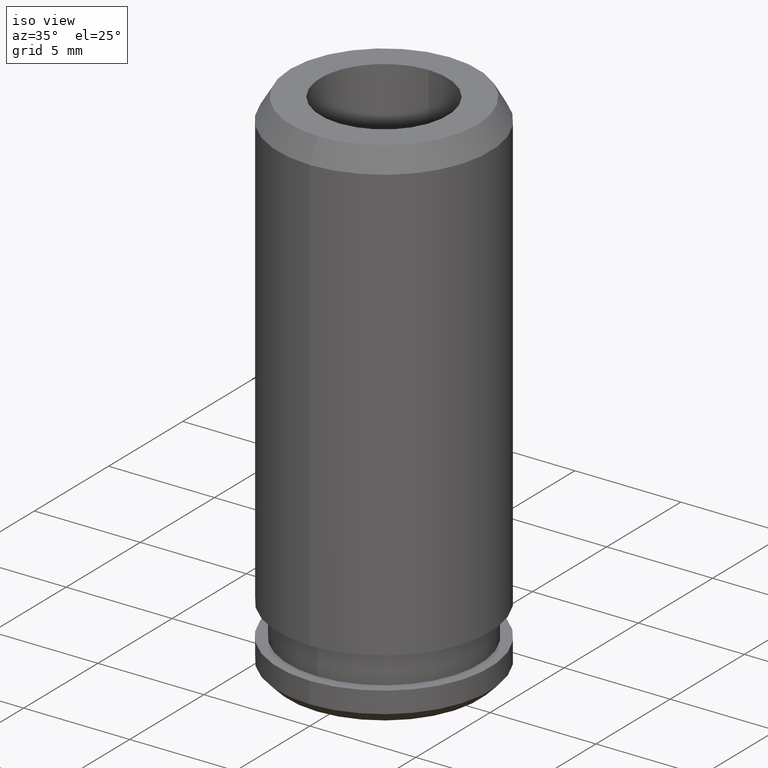
[diagram: clean part render]
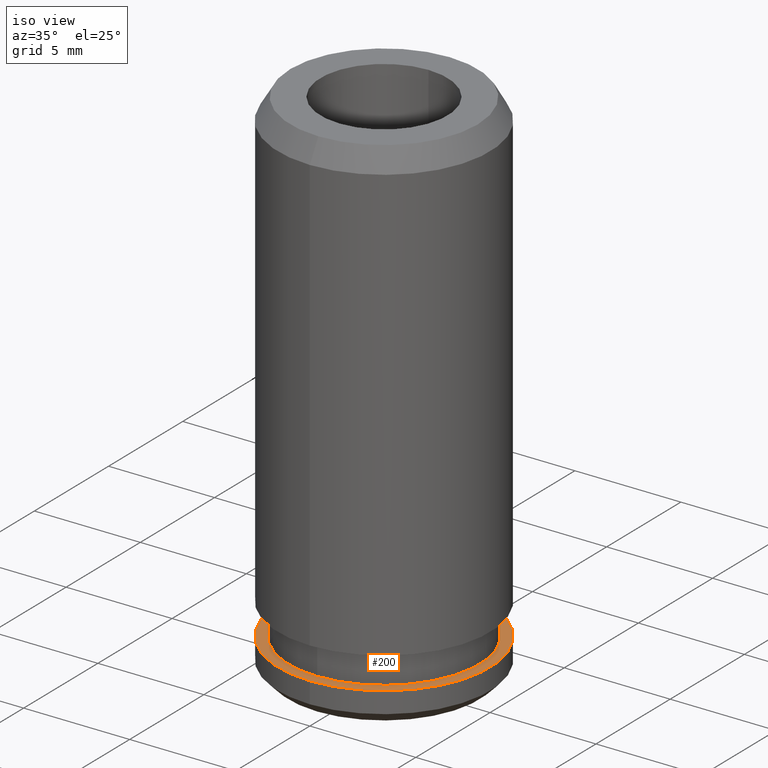
[diagram: same view with one face highlighted and labeled with its STEP entity id]
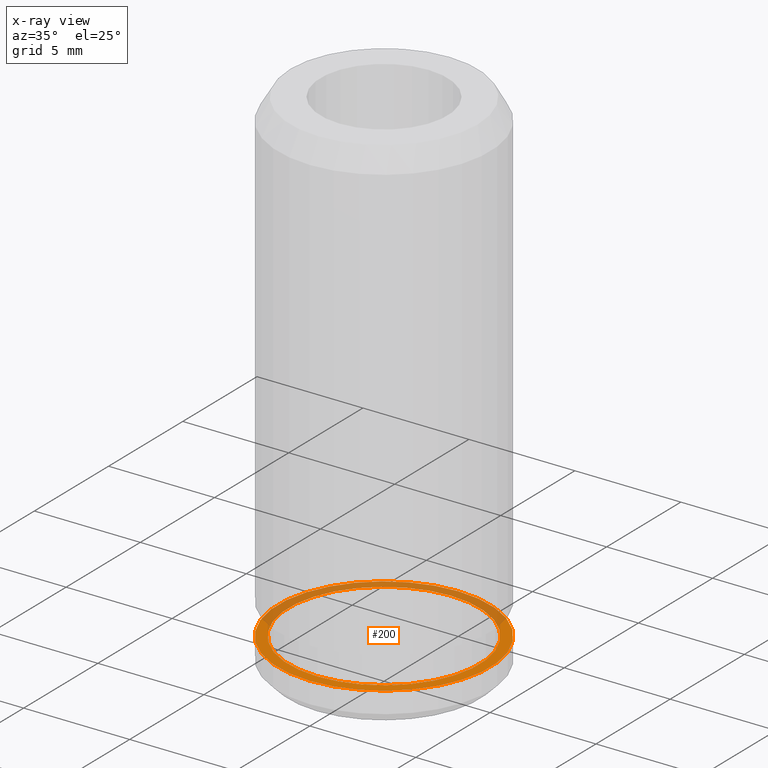
[diagram: x-ray of the same camera — body ghosted, the highlighted face saturated]
A machine part, iso view. The second image highlights one B-rep face of the part: STEP entity #200.
The next image is the same camera in x-ray: the body ghosted, the highlighted face saturated — about 42% of this face is hidden behind the body in this view.
In plain terms, the highlighted planar face has unit normal (0, -0, 1).
Its self-contained STEP definition (entity closure, byte-faithful):
#110=EDGE_CURVE('NONE',#166,#124,#279,.T.);
#124=VERTEX_POINT('NONE',#295);
#164=VERTEX_POINT('NONE',#340);
#166=VERTEX_POINT('NONE',#342);
#182=EDGE_CURVE('NONE',#124,#166,#361,.T.);
#188=EDGE_CURVE('NONE',#242,#164,#368,.T.);
#200=ADVANCED_FACE('NONE',(#381,#382),#383,.T.);
#220=EDGE_CURVE('NONE',#164,#242,#407,.T.);
#242=VERTEX_POINT('NONE',#432);
#279=CIRCLE('',#465,5.0);
#295=CARTESIAN_POINT('',(0.0,-5.0,1.5));
#340=CARTESIAN_POINT('',(-5.5107285922007E-016,4.5,1.5));
#342=CARTESIAN_POINT('',(-6.12303176911189E-016,5.0,1.5));
#361=CIRCLE('',#569,5.0);
#368=CIRCLE('',#579,4.5);
#381=FACE_OUTER_BOUND('',#595,.T.);
#382=FACE_BOUND('',#596,.T.);
#383=PLANE('',#597);
#407=CIRCLE('',#628,4.5);
#432=CARTESIAN_POINT('',(0.0,-4.5,1.5));
#465=AXIS2_PLACEMENT_3D('',#681,#682,#683);
#569=AXIS2_PLACEMENT_3D('',#776,#777,#778);
#579=AXIS2_PLACEMENT_3D('',#788,#789,#790);
#595=EDGE_LOOP('',(#809,#810));
#596=EDGE_LOOP('',(#811,#812));
#597=AXIS2_PLACEMENT_3D('',#813,#814,#815);
#628=AXIS2_PLACEMENT_3D('',#848,#849,#850);
#681=CARTESIAN_POINT('',(0.0,0.0,1.5));
#682=DIRECTION('',(0.0,0.0,-1.0));
#683=DIRECTION('',(0.0,-1.0,0.0));
#776=CARTESIAN_POINT('',(0.0,0.0,1.5));
#777=DIRECTION('',(0.0,0.0,-1.0));
#778=DIRECTION('',(0.0,-1.0,0.0));
#788=CARTESIAN_POINT('',(0.0,0.0,1.5));
#789=DIRECTION('',(0.0,0.0,-1.0));
#790=DIRECTION('',(0.0,-1.0,0.0));
#809=ORIENTED_EDGE('',*,*,#182,.F.);
#810=ORIENTED_EDGE('',*,*,#110,.F.);
#811=ORIENTED_EDGE('',*,*,#188,.T.);
#812=ORIENTED_EDGE('',*,*,#220,.T.);
#813=CARTESIAN_POINT('',(-5.0,0.0,1.5));
#814=DIRECTION('',(0.0,-0.0,1.0));
#815=DIRECTION('',(0.0,1.0,0.0));
#848=CARTESIAN_POINT('',(0.0,0.0,1.5));
#849=DIRECTION('',(0.0,0.0,-1.0));
#850=DIRECTION('',(0.0,-1.0,0.0));